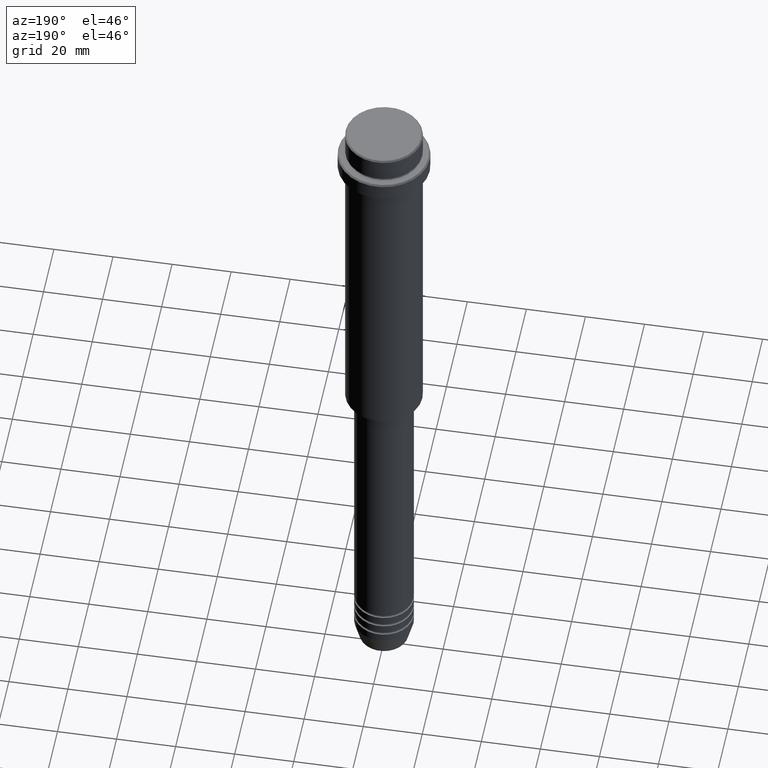
[diagram: clean part render]
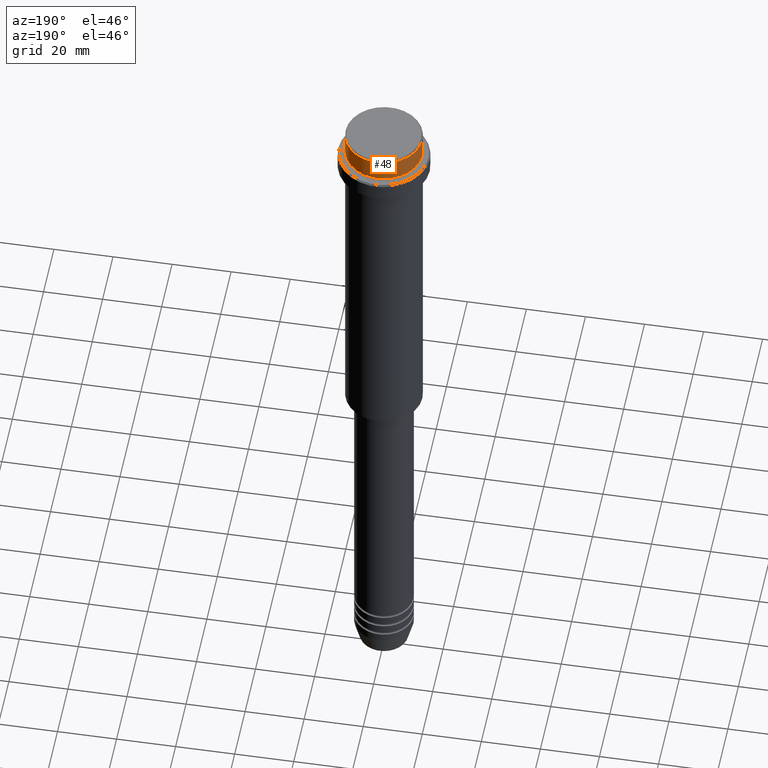
[diagram: same view with one face highlighted and labeled with its STEP entity id]
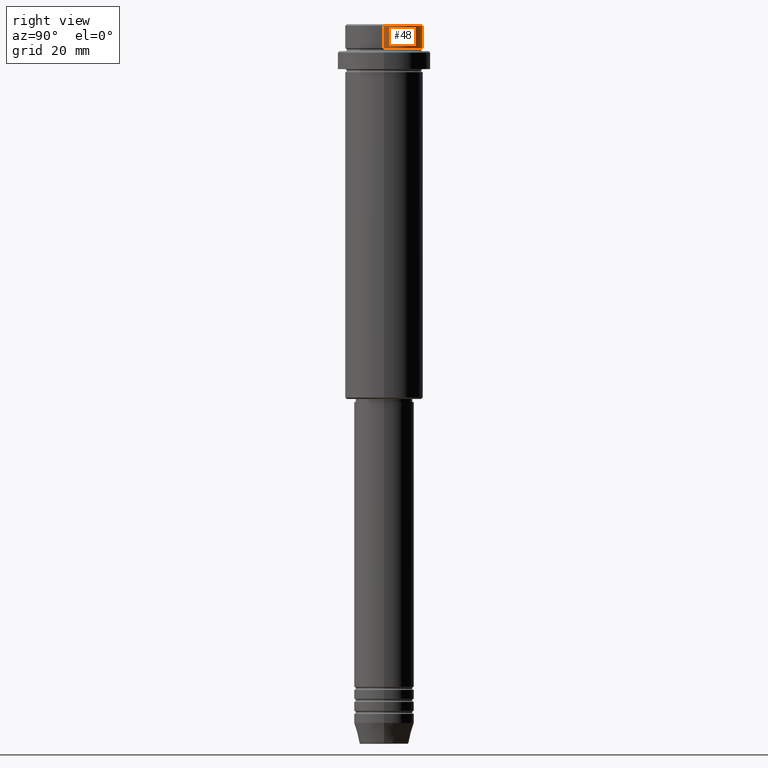
[diagram: same view with one face highlighted and labeled with its STEP entity id]
A machine part, auxiliary view. The second image highlights one B-rep face of the part: STEP entity #48.
A second angle (right view) of the same face is appended — the face is thin or edge-on in the first view.
In plain terms, the highlighted cylindrical surface (partial cylindrical patch) has radius 13 mm, axis along (-0, -0, 1).
Its self-contained STEP definition (entity closure, byte-faithful):
#7 = EDGE_CURVE ( 'NONE', #273, #731, #135, .T. ) ;
#24 = AXIS2_PLACEMENT_3D ( 'NONE', #517, #870, #1181 ) ;
#44 = CARTESIAN_POINT ( 'NONE',  ( 12.99999999999999822, 0.000000000000000000, -7.999999999999998224 ) ) ;
#48 = ADVANCED_FACE ( 'NONE', ( #412 ), #317, .T. ) ;
#55 = CARTESIAN_POINT ( 'NONE',  ( -12.99999999999999822, 1.592040838891558898E-15, -0.5000000000000038858 ) ) ;
#129 = DIRECTION ( 'NONE',  ( -0.000000000000000000, -0.000000000000000000, 1.000000000000000000 ) ) ;
#135 = CIRCLE ( 'NONE', #24, 12.99999999999999822 ) ;
#156 = VERTEX_POINT ( 'NONE', #561 ) ;
#159 = LINE ( 'NONE', #283, #287 ) ;
#182 = DIRECTION ( 'NONE',  ( 1.000000000000000000, 0.000000000000000000, 0.000000000000000000 ) ) ;
#273 = VERTEX_POINT ( 'NONE', #55 ) ;
#283 = CARTESIAN_POINT ( 'NONE',  ( -12.99999999999999822, 1.592040838891558898E-15, 0.000000000000000000 ) ) ;
#287 = VECTOR ( 'NONE', #610, 1000.000000000000000 ) ;
#317 = CYLINDRICAL_SURFACE ( 'NONE', #767, 12.99999999999999822 ) ;
#363 = EDGE_CURVE ( 'NONE', #156, #273, #159, .T. ) ;
#412 = FACE_OUTER_BOUND ( 'NONE', #693, .T. ) ;
#435 = CARTESIAN_POINT ( 'NONE',  ( 0.000000000000000000, 0.000000000000000000, -7.999999999999998224 ) ) ;
#475 = CARTESIAN_POINT ( 'NONE',  ( 12.99999999999999822, 0.000000000000000000, -0.5000000000000038858 ) ) ;
#517 = CARTESIAN_POINT ( 'NONE',  ( 0.000000000000000000, 0.000000000000000000, -0.5000000000000038858 ) ) ;
#561 = CARTESIAN_POINT ( 'NONE',  ( -12.99999999999999822, 1.592040838891558898E-15, -7.999999999999998224 ) ) ;
#579 = EDGE_CURVE ( 'NONE', #833, #731, #1227, .T. ) ;
#610 = DIRECTION ( 'NONE',  ( -0.000000000000000000, -0.000000000000000000, 1.000000000000000000 ) ) ;
#645 = DIRECTION ( 'NONE',  ( -0.000000000000000000, -0.000000000000000000, 1.000000000000000000 ) ) ;
#656 = CIRCLE ( 'NONE', #1182, 12.99999999999999822 ) ;
#677 = CARTESIAN_POINT ( 'NONE',  ( 12.99999999999999822, 0.000000000000000000, 0.000000000000000000 ) ) ;
#693 = EDGE_LOOP ( 'NONE', ( #769, #899, #1332, #1365 ) ) ;
#731 = VERTEX_POINT ( 'NONE', #475 ) ;
#767 = AXIS2_PLACEMENT_3D ( 'NONE', #1301, #645, #182 ) ;
#769 = ORIENTED_EDGE ( 'NONE', *, *, #1033, .T. ) ;
#795 = VECTOR ( 'NONE', #129, 1000.000000000000000 ) ;
#833 = VERTEX_POINT ( 'NONE', #44 ) ;
#870 = DIRECTION ( 'NONE',  ( 0.000000000000000000, 0.000000000000000000, -1.000000000000000000 ) ) ;
#899 = ORIENTED_EDGE ( 'NONE', *, *, #363, .T. ) ;
#1033 = EDGE_CURVE ( 'NONE', #833, #156, #656, .T. ) ;
#1181 = DIRECTION ( 'NONE',  ( 1.000000000000000000, 0.000000000000000000, 0.000000000000000000 ) ) ;
#1182 = AXIS2_PLACEMENT_3D ( 'NONE', #435, #1191, #1298 ) ;
#1191 = DIRECTION ( 'NONE',  ( -0.000000000000000000, -0.000000000000000000, 1.000000000000000000 ) ) ;
#1227 = LINE ( 'NONE', #677, #795 ) ;
#1298 = DIRECTION ( 'NONE',  ( 1.000000000000000000, 0.000000000000000000, 0.000000000000000000 ) ) ;
#1301 = CARTESIAN_POINT ( 'NONE',  ( 0.000000000000000000, 0.000000000000000000, 0.000000000000000000 ) ) ;
#1332 = ORIENTED_EDGE ( 'NONE', *, *, #7, .T. ) ;
#1365 = ORIENTED_EDGE ( 'NONE', *, *, #579, .F. ) ;